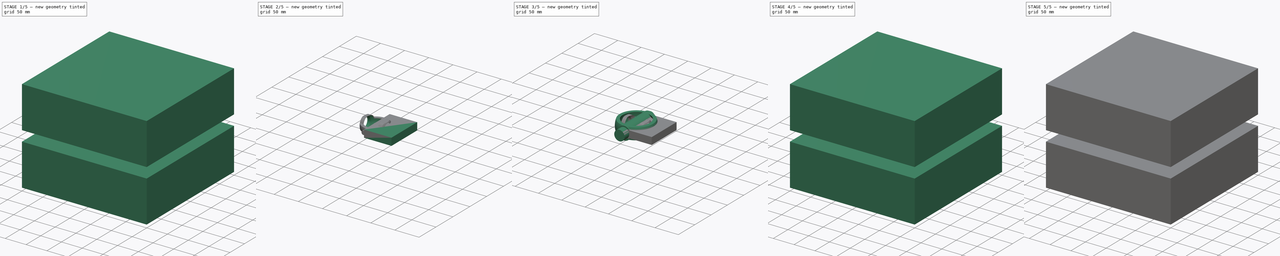
[diagram: build sequence overview — one tinted view per stage of 5, left to right]
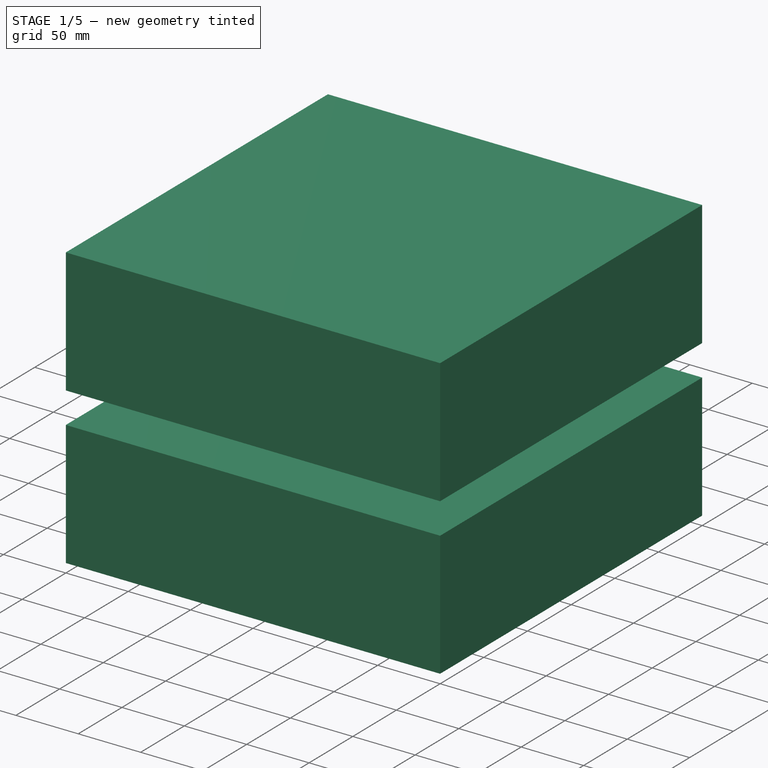
[diagram: stage 1 of 5 — iso view after this stage's code; geometry added in this stage tinted green]
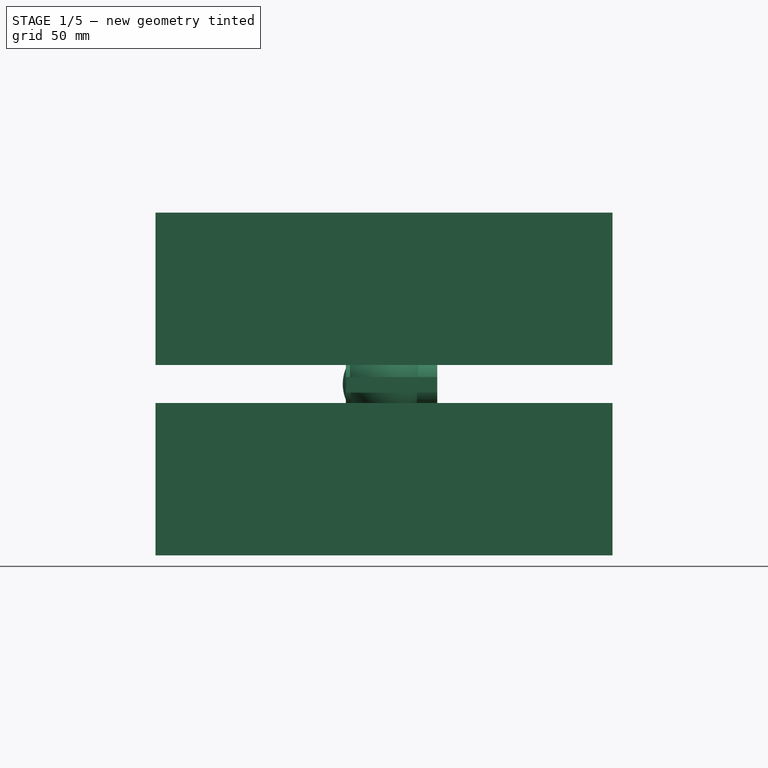
[diagram: stage 1 of 5 — front view after this stage's code; geometry added in this stage tinted green]
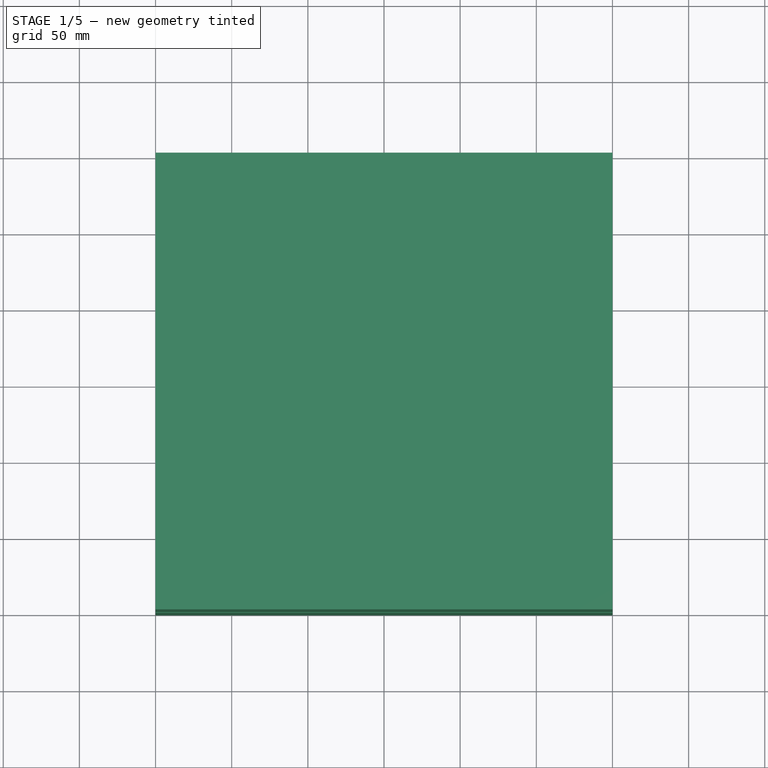
[diagram: stage 1 of 5 — top view after this stage's code; geometry added in this stage tinted green]
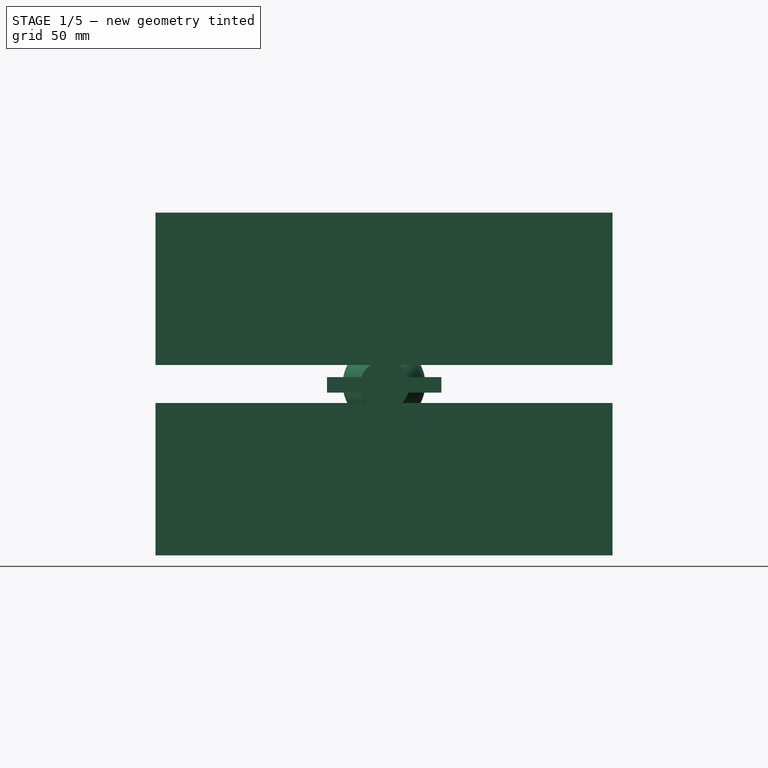
[diagram: stage 1 of 5 — right view after this stage's code; geometry added in this stage tinted green]
FCSTD DOCUMENT  (FreeCAD 0.15R4671 (Git))
Label: gimbalf
License: All rights reserved
LicenseURL: http://en.wikipedia.org/wiki/All_rights_reserved
objects: Part::Cut×13, Part::Cylinder×10, Part::MultiFuse×8, Part::Sphere×6, Part::Box×6, Sketcher::SketchObject×4, PartDesign::Pad×4, PartDesign::Fillet×3, App::MeasureDistance×2, Part::MultiCommon×2, Part::Feature×1
note: 61 computed .brp shape members not serialized (recipe doc carries the construction recipe); baked Part::Feature solids carry a one-line shape summary decoded from their .brp

FEATURE [Part::Sphere] Sphere002  label="Sphère002"
  Angle1 = -90
  Angle2 = 90
  Angle3 = 360
  Placement = pos=(0,0,10.5) rot=(0,0,1;0rad)
  Radius = 27.1
FEATURE [Part::Box] Box002  label="Cube002"
  Height = 100
  Length = 300
  Placement = pos=(-150,-150,-102) rot=(0,0,1;0rad)
  Width = 300
FEATURE [Part::Box] Box003  label="Cube003"
  Height = 100
  Length = 300
  Placement = pos=(-150,-150,23) rot=(0,0,1;0rad)
  Width = 300
FEATURE [Part::MultiFuse] Fusion002
  Shapes = -> [Box002,Box003]
FEATURE [Part::Cylinder] Cylinder007  label="Cylindre006"
  Angle = 360
  Height = 72
  Placement = pos=(0,36,10.5) rot=(1,0,0;1.5708rad)
  Radius = 4
FEATURE [Part::Sphere] Sphere003  label="Sphère003"
  Angle1 = -90
  Angle2 = 90
  Angle3 = 360
  Placement = pos=(0,0,10.5) rot=(0,0,1;0rad)
  Radius = 21.4
FEATURE [Part::Cut] Cut009
  Base = -> Cylinder007
  Tool = -> Sphere003
FEATURE [Sketcher::SketchObject] Sketch002
  Placement = pos=(-25,0,0) rot=(0.57735,0.57735,0.57735;2.0944rad)
  sketch-geometry (4):
    g0: LineSegment StartX=-37.4068 StartY=15.0136 StartZ=0 EndX=37.6613 EndY=15.0136 EndZ=0
    g1: LineSegment StartX=37.6613 StartY=15.0136 StartZ=0 EndX=37.6613 EndY=4.8349 EndZ=0
    g2: LineSegment StartX=37.6613 StartY=4.8349 StartZ=0 EndX=-37.4068 EndY=4.8349 EndZ=0
    g3: LineSegment StartX=-37.4068 StartY=4.8349 StartZ=0 EndX=-37.4068 EndY=15.0136 EndZ=0
  constraints (8):
    c: Coincident(g0,g1)
    c: Coincident(g1,g2)
    c: Coincident(g2,g3)
    c: Coincident(g3,g0)
    c: Horizontal(g0)
    c: Horizontal(g2)
    c: Vertical(g1)
    c: Vertical(g3)
FEATURE [Sketcher::SketchObject] Sketch003
  Placement = pos=(-25,0,0) rot=(0.57735,0.57735,0.57735;2.0944rad)
  sketch-geometry (1):
    g0: Circle CenterX=0.508931 CenterY=9.66979 CenterZ=0 NormalX=0 NormalY=0 NormalZ=1 Radius=16.2302
FEATURE [PartDesign::Pad] Pad002
  Length = 60
  Length2 = 100
  Placement = pos=(-25,0,0) rot=(0.57735,0.57735,0.57735;2.0944rad)
  Sketch = -> Sketch003
  Type = 0
FEATURE [PartDesign::Pad] Pad003
  Length = 60
  Length2 = 100
  Placement = pos=(-25,0,0) rot=(0.57735,0.57735,0.57735;2.0944rad)
  Sketch = -> Sketch002
  Type = 0
FEATURE [Part::MultiFuse] Fusion007
  Shapes = -> [Pad003,Pad002]
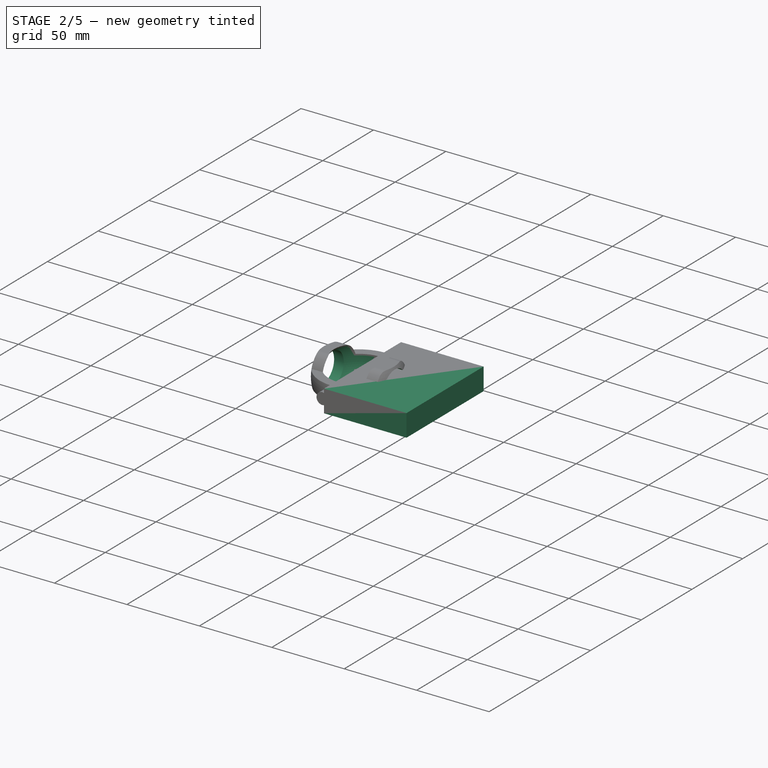
[diagram: stage 2 of 5 — iso view after this stage's code; geometry added in this stage tinted green]
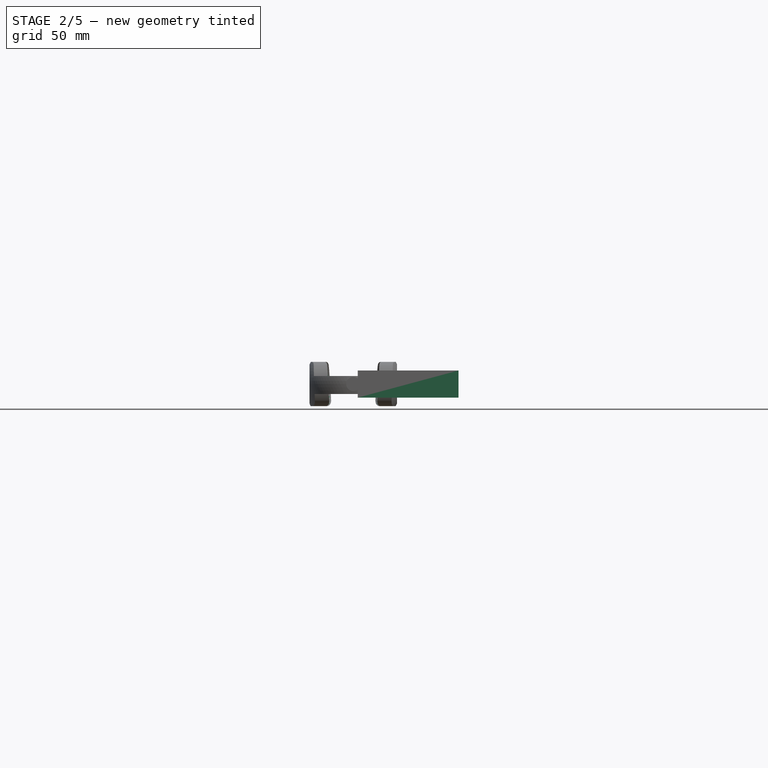
[diagram: stage 2 of 5 — front view after this stage's code; geometry added in this stage tinted green]
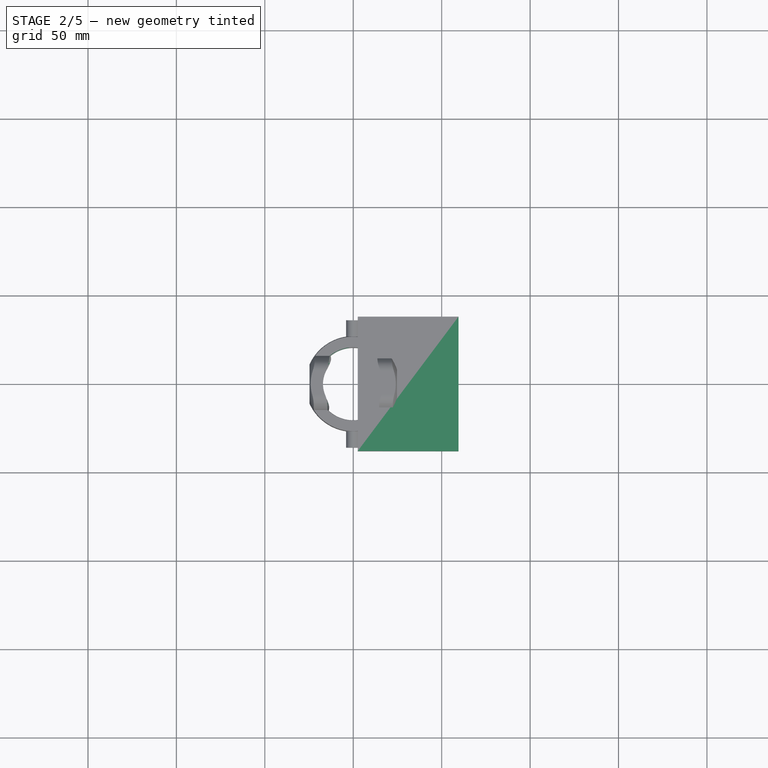
[diagram: stage 2 of 5 — top view after this stage's code; geometry added in this stage tinted green]
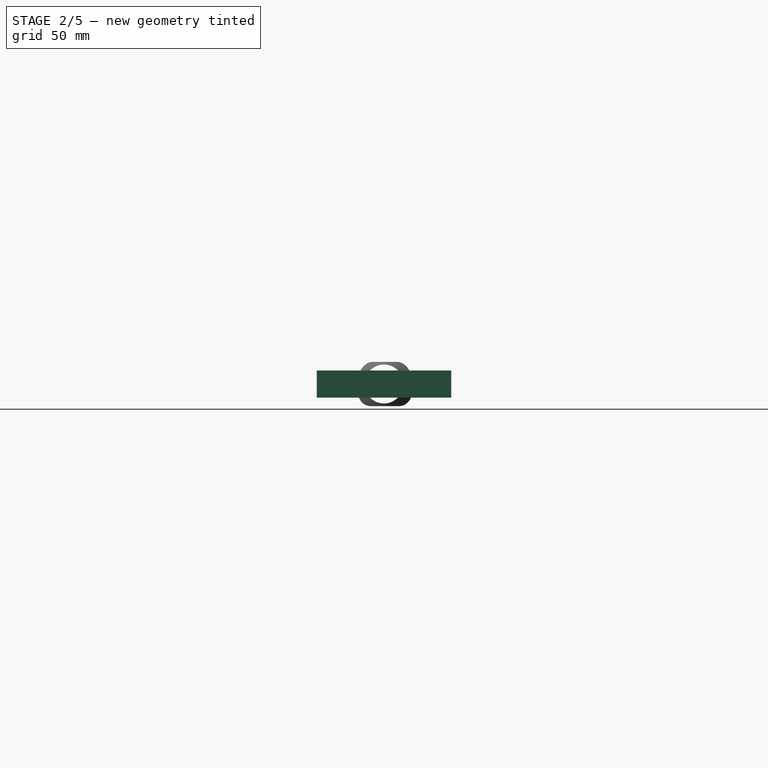
[diagram: stage 2 of 5 — right view after this stage's code; geometry added in this stage tinted green]
FEATURE [Part::Cylinder] Cylinder006  label="Cylindre005"
  Angle = 360
  Height = 68
  Placement = pos=(-32,0,10.5) rot=(0,1,0;1.5708rad)
  Radius = 11
FEATURE [Part::Sphere] Sphere001  label="Sphère001"
  Angle1 = -90
  Angle2 = 90
  Angle3 = 360
  Placement = pos=(0,0,10.5) rot=(0,0,1;0rad)
  Radius = 21.2
FEATURE [Part::Cut] Cut006
  Base = -> Sphere002
  Tool = -> Sphere001
FEATURE [Part::Cut] Cut007
  Base = -> Cut006
  Tool = -> Cylinder006
FEATURE [Part::Cut] Cut008
  Base = -> Cut007
  Tool = -> Fusion002
FEATURE [Part::MultiFuse] Fusion003  label="mediium"
  Shapes = -> [Cut009,Cut008]
FEATURE [PartDesign::Pad] Pad001
  Length = 76
  Length2 = 100
  Placement = pos=(0,38,0) rot=(-1,0,0;4.71239rad)
  Sketch = -> Sketch
  Type = 0
FEATURE [Part::MultiCommon] Common002
  Shapes = -> [Fusion007,Fusion003]
FEATURE [PartDesign::Fillet] Fillet
  Base = -> Common002 [Edge59,Edge62]
  Radius = 7
FEATURE [PartDesign::Fillet] Fillet001
  Base = -> Fillet [Edge52,Edge31]
  Radius = 7
FEATURE [PartDesign::Fillet] Fillet002  label="Medium2"
  Base = -> Fillet001 [Edge70,Edge58,Edge61,Edge73]
  Radius = 7
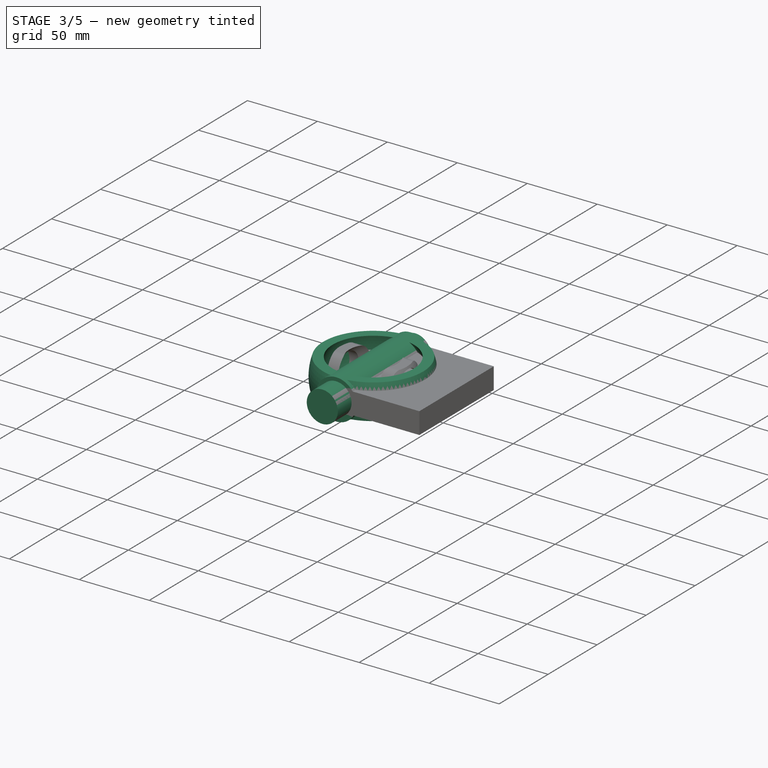
[diagram: stage 3 of 5 — iso view after this stage's code; geometry added in this stage tinted green]
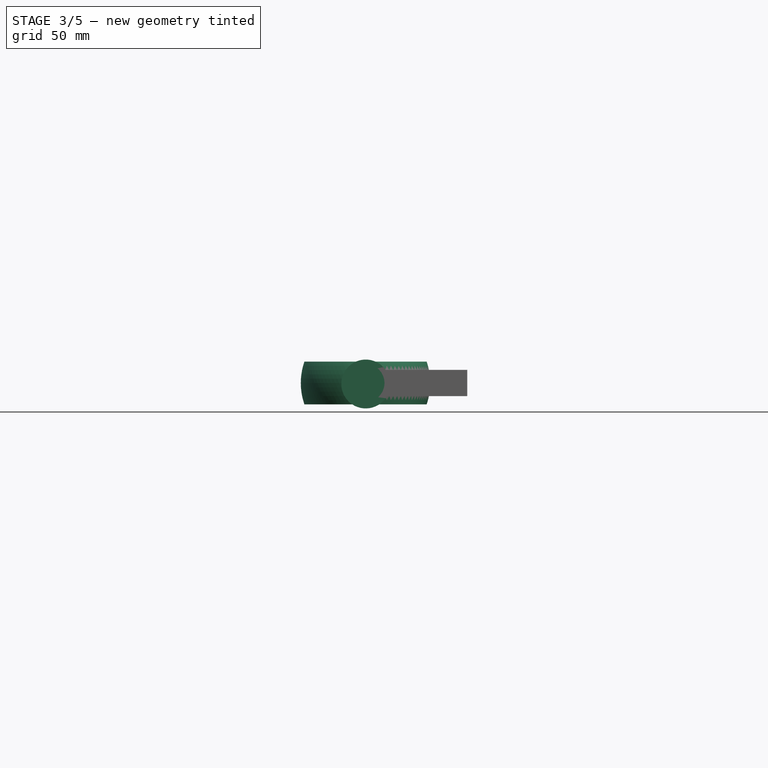
[diagram: stage 3 of 5 — front view after this stage's code; geometry added in this stage tinted green]
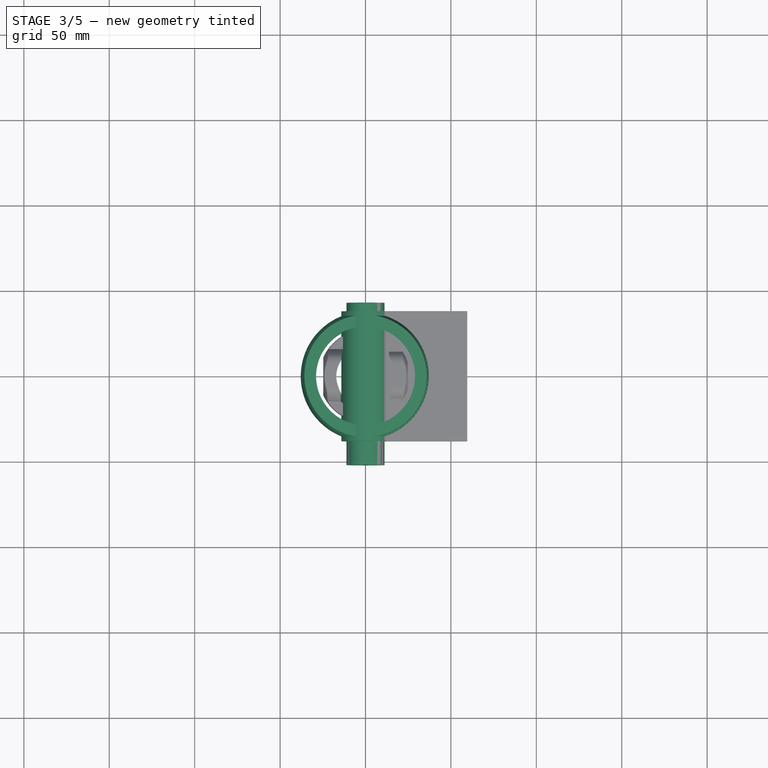
[diagram: stage 3 of 5 — top view after this stage's code; geometry added in this stage tinted green]
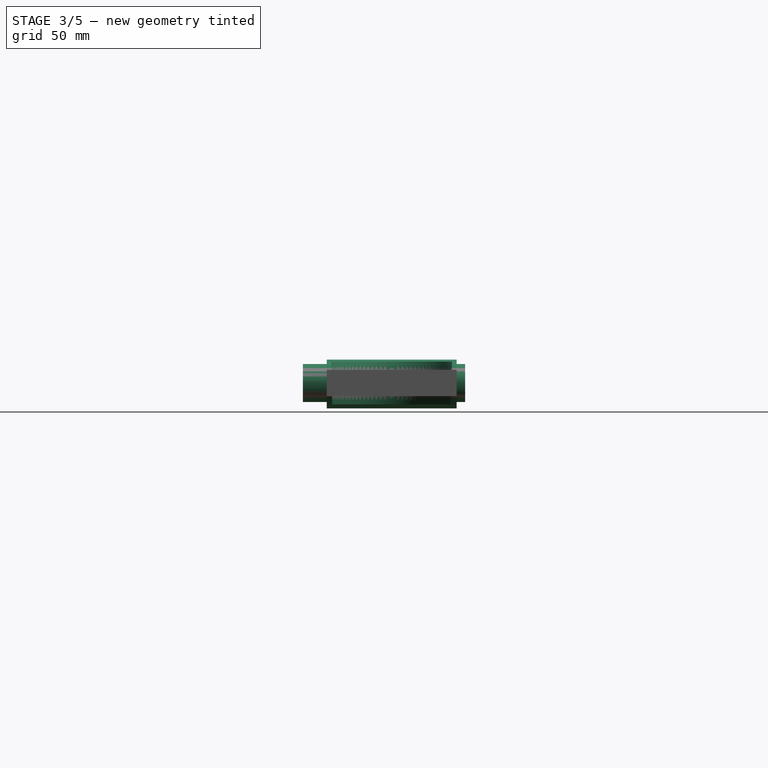
[diagram: stage 3 of 5 — right view after this stage's code; geometry added in this stage tinted green]
FEATURE [Part::Cylinder] Cylinder009  label="Cylindre008"
  Angle = 360
  Height = 95
  Placement = pos=(0,43,10.5) rot=(1,0,0;1.5708rad)
  Radius = 11.1
FEATURE [Part::Sphere] Sphere004  label="Sphère004"
  Angle1 = -90
  Angle2 = 90
  Angle3 = 360
  Placement = pos=(0,0,10.5) rot=(0,0,1;0rad)
  Radius = 31.535
FEATURE [App::MeasureDistance] Distance  label="Distance: 31.535"
  Distance = 31.5351
  P1 = (0,0,5)
  P2 = (11.1,29,10.5)
FEATURE [App::MeasureDistance] Distance001  label="Distance: 49.129"
  Distance = 49.1291
  P1 = (11.1,36,10.5)
  P2 = (0,0,42.035)
FEATURE [Part::Sphere] Sphere005  label="Sphère005"
  Angle1 = -90
  Angle2 = 90
  Angle3 = 360
  Placement = pos=(0,0,10.5) rot=(0,0,1;0rad)
  Radius = 37.9
FEATURE [Part::Cut] Cut010
  Base = -> Sphere005
  Tool = -> Sphere004
FEATURE [Part::Box] Box004  label="Cube004"
  Height = 100
  Length = 300
  Placement = pos=(-150,-150,-102) rot=(0,0,1;0rad)
  Width = 300
FEATURE [Part::Box] Box005  label="Cube005"
  Height = 100
  Length = 300
  Placement = pos=(-150,-150,23) rot=(0,0,1;0rad)
  Width = 300
FEATURE [Part::MultiFuse] Fusion004
  Shapes = -> [Box004,Box005]
FEATURE [Part::Cut] Cut011
  Base = -> Cut010
  Tool = -> Fusion004
FEATURE [Sketcher::SketchObject] Sketch
  Placement = pos=(0,38,0) rot=(-1,0,0;4.71239rad)
  sketch-geometry (4):
    g0: LineSegment StartX=59.5356 StartY=18.1542 StartZ=0 EndX=2.55634 EndY=18.1542 EndZ=0
    g1: LineSegment StartX=2.55634 StartY=18.1542 StartZ=0 EndX=2.55634 EndY=2.79211 EndZ=0
    g2: LineSegment StartX=2.55634 StartY=2.79211 StartZ=0 EndX=59.5356 EndY=2.79211 EndZ=0
    g3: LineSegment StartX=59.5356 StartY=2.79211 StartZ=0 EndX=59.5356 EndY=18.1542 EndZ=0
  constraints (8):
    c: Coincident(g0,g1)
    c: Coincident(g1,g2)
    c: Coincident(g2,g3)
    c: Coincident(g3,g0)
    c: Horizontal(g0)
    c: Horizontal(g2)
    c: Vertical(g1)
    c: Vertical(g3)
FEATURE [Sketcher::SketchObject] Sketch001
  Placement = pos=(0,38,0) rot=(-1,0,0;4.71239rad)
  sketch-geometry (1):
    g0: Circle CenterX=0.139656 CenterY=9.91551 CenterZ=0 NormalX=0 NormalY=0 NormalZ=1 Radius=14.2928
  constraints (1):
    c: Radius(g0) = 14.2928
FEATURE [PartDesign::Pad] Pad
  Length = 76
  Length2 = 100
  Placement = pos=(0,38,0) rot=(-1,0,0;4.71239rad)
  Sketch = -> Sketch001
  Type = 0
FEATURE [Part::MultiFuse] Fusion006
  Shapes = -> [Pad,Pad001]
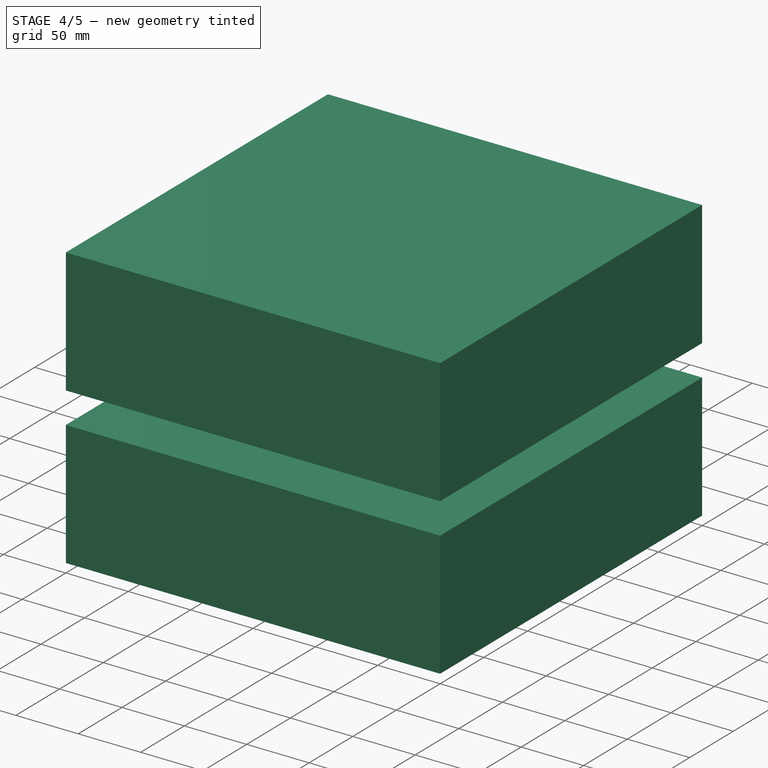
[diagram: stage 4 of 5 — iso view after this stage's code; geometry added in this stage tinted green]
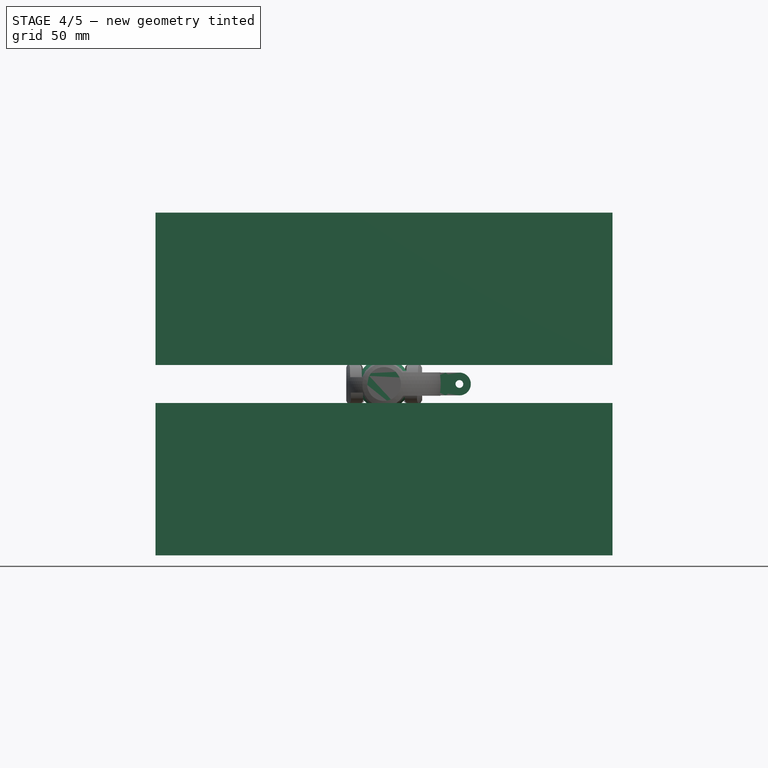
[diagram: stage 4 of 5 — front view after this stage's code; geometry added in this stage tinted green]
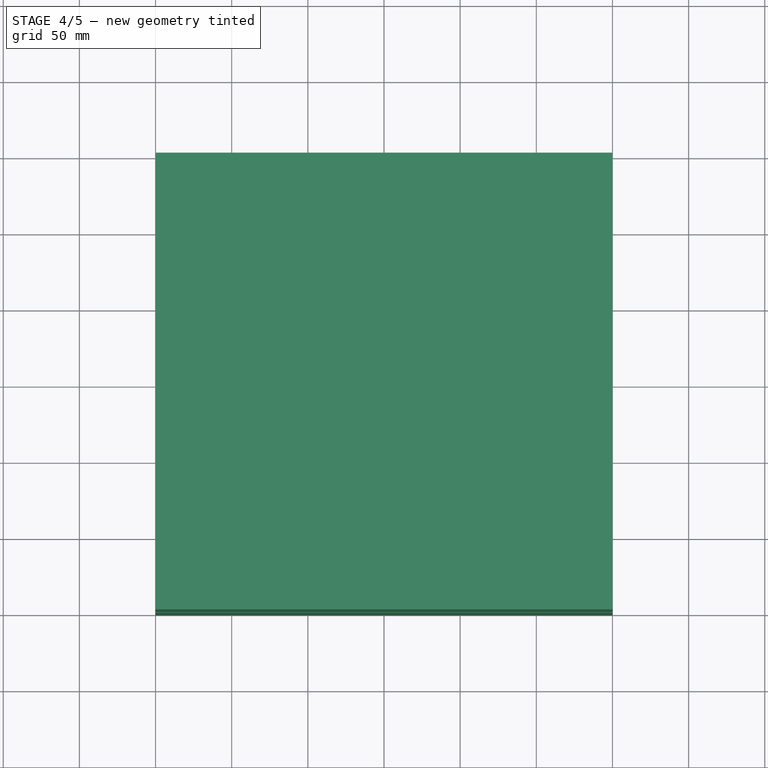
[diagram: stage 4 of 5 — top view after this stage's code; geometry added in this stage tinted green]
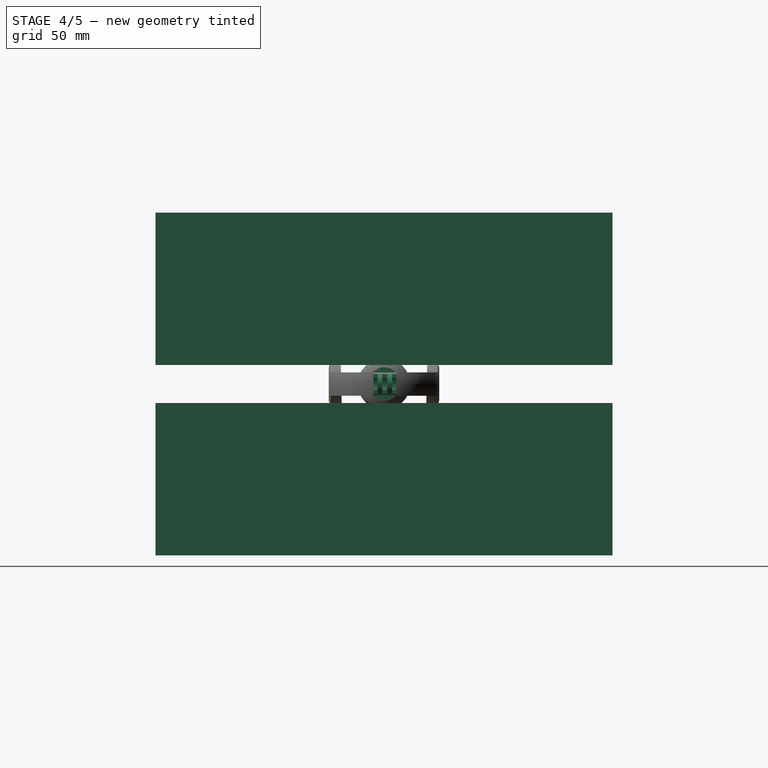
[diagram: stage 4 of 5 — right view after this stage's code; geometry added in this stage tinted green]
FEATURE [Part::Cylinder] Cylinder  label="Cylindre"
  Angle = 360
  Height = 21
  Radius = 12.5
FEATURE [Part::Cylinder] Cylinder004  label="Axe rotation"
  Angle = 360
  Height = 48
  Placement = pos=(-23,0,10.5) rot=(0,1,0;1.5708rad)
  Radius = 3.95
FEATURE [Part::Sphere] Sphere  label="Sphère"
  Angle1 = -90
  Angle2 = 90
  Angle3 = 360
  Placement = pos=(0,0,10.5) rot=(0,0,1;0rad)
  Radius = 17
FEATURE [Part::Box] Box  label="Cube"
  Height = 100
  Length = 300
  Placement = pos=(-150,-150,-102) rot=(0,0,1;0rad)
  Width = 300
FEATURE [Part::Box] Box001  label="Cube001"
  Height = 100
  Length = 300
  Placement = pos=(-150,-150,23) rot=(0,0,1;0rad)
  Width = 300
FEATURE [Part::MultiFuse] Fusion001
  Shapes = -> [Box,Box001]
FEATURE [Part::Cylinder] Cylinder005  label="Cylindre004"
  Angle = 360
  Height = 7
  Placement = pos=(18,0,10.5) rot=(0,1,0;1.5708rad)
  Radius = 11
FEATURE [Part::Cylinder] Cylinder008  label="Cylindre007"
  Angle = 360
  Height = 7
  Placement = pos=(0,-29,10.5) rot=(1,0,0;1.5708rad)
  Radius = 11.1
FEATURE [Part::Cut] Cut012
  Base = -> Cut011
  Tool = -> Cylinder009
FEATURE [Part::Feature] Common  label="attache GOPRO"
  Placement = pos=(32,-7,10.5) rot=(0,-1,0;1.5708rad)
  shape: bbox 21.99 x 15 x 15 mm, 390 faces (baked)
FEATURE [Part::MultiFuse] Fusion005  label="Grand"
  Shapes = -> [Common,Cut012]
FEATURE [Part::MultiCommon] Common001  label="grad evider"
  Shapes = -> [Fusion005,Fusion006]
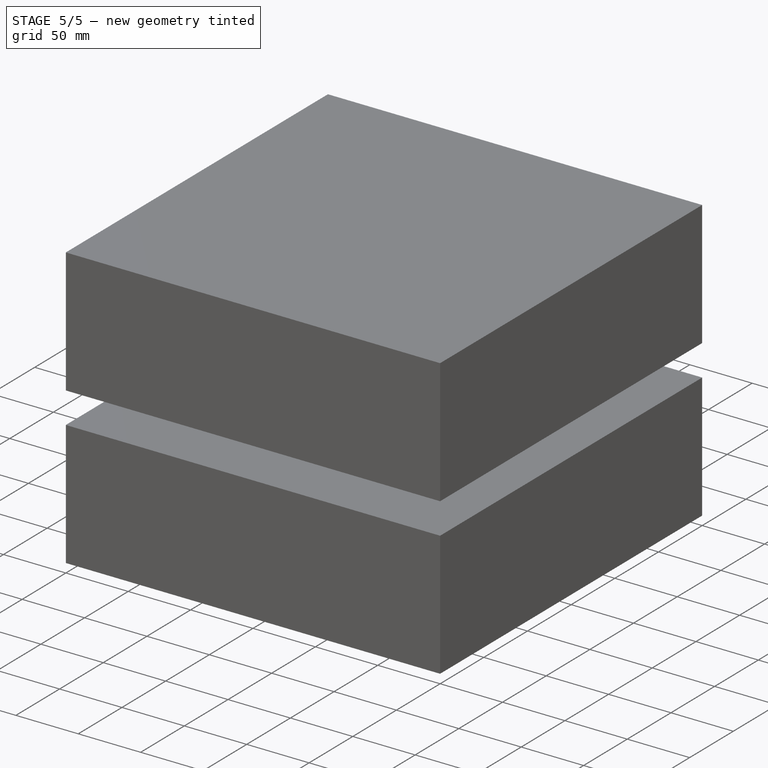
[diagram: stage 5 of 5 — iso view after this stage's code; geometry added in this stage tinted green]
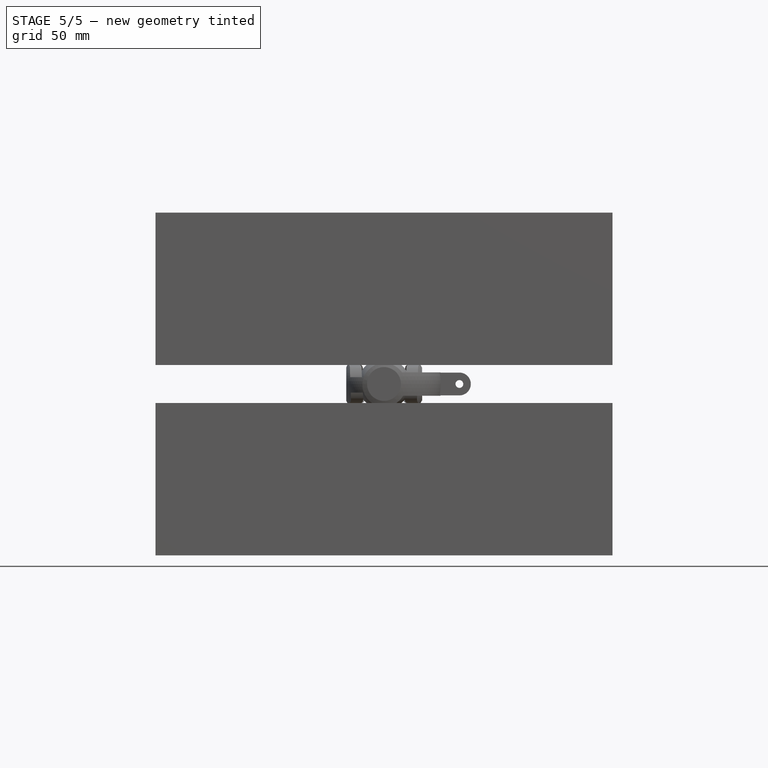
[diagram: stage 5 of 5 — front view after this stage's code; geometry added in this stage tinted green]
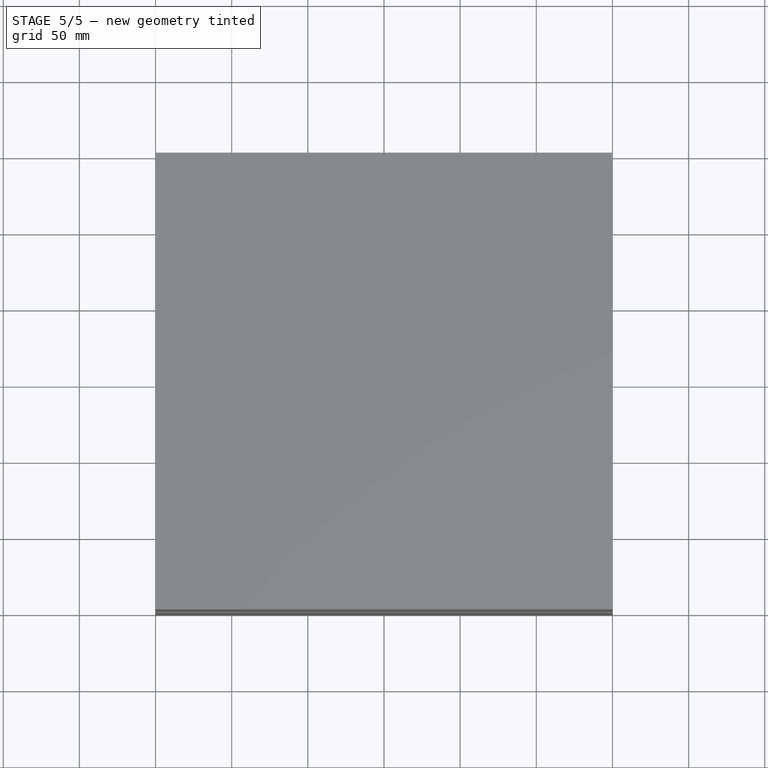
[diagram: stage 5 of 5 — top view after this stage's code; geometry added in this stage tinted green]
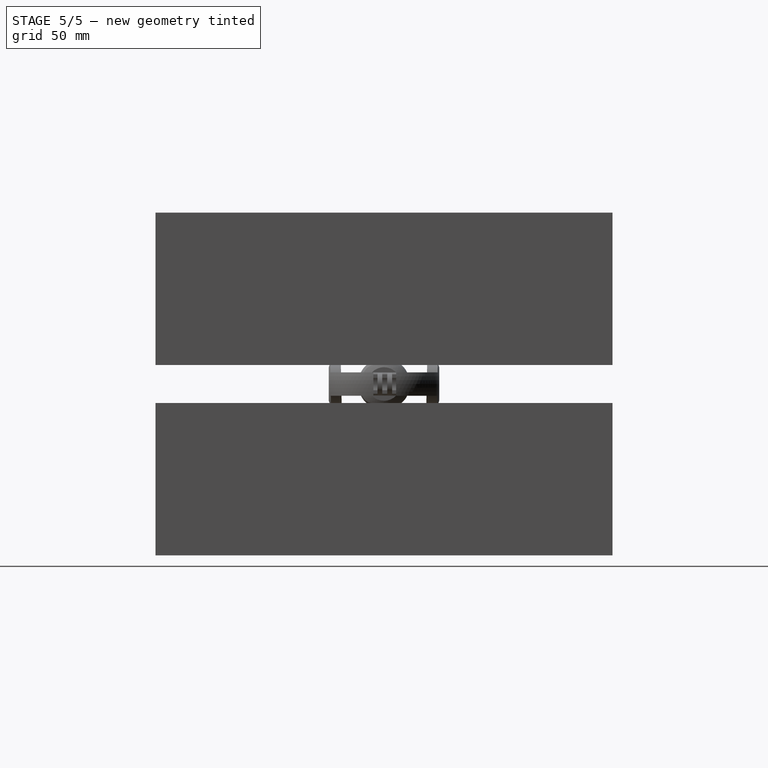
[diagram: stage 5 of 5 — right view after this stage's code; geometry added in this stage tinted green]
FEATURE [Part::Cylinder] Cylinder001  label="Cylindre001"
  Angle = 360
  Height = 50
  Placement = pos=(0,0,-11) rot=(0,0,1;0rad)
  Radius = 7.5
FEATURE [Part::Cut] Cut
  Base = -> Cylinder
  Tool = -> Cylinder001
FEATURE [Part::Cylinder] Cylinder002  label="Cylindre002"
  Angle = 360
  Height = 7.1
  Placement = pos=(0,0,-0.0001) rot=(0,0,1;0rad)
  Radius = 11
FEATURE [Part::Cut] Cut001
  Base = -> Cut
  Tool = -> Cylinder002
FEATURE [Part::Cylinder] Cylinder003  label="Cylindre003"
  Angle = 360
  Height = 7.1
  Placement = pos=(0,0,13.91) rot=(0,0,1;0rad)
  Radius = 11
FEATURE [Part::Cut] Cut002
  Base = -> Cut001
  Tool = -> Cylinder003
FEATURE [Part::MultiFuse] Fusion
  Shapes = -> [Cylinder,Cylinder004]
FEATURE [Part::Cut] Cut003
  Base = -> Fusion
  Tool = -> Cylinder002
FEATURE [Part::Cut] Cut004
  Base = -> Cut003
  Tool = -> Cylinder003
FEATURE [Part::Cut] Cut005  label="centrale"
  Base = -> Cut004
  Tool = -> Cylinder001
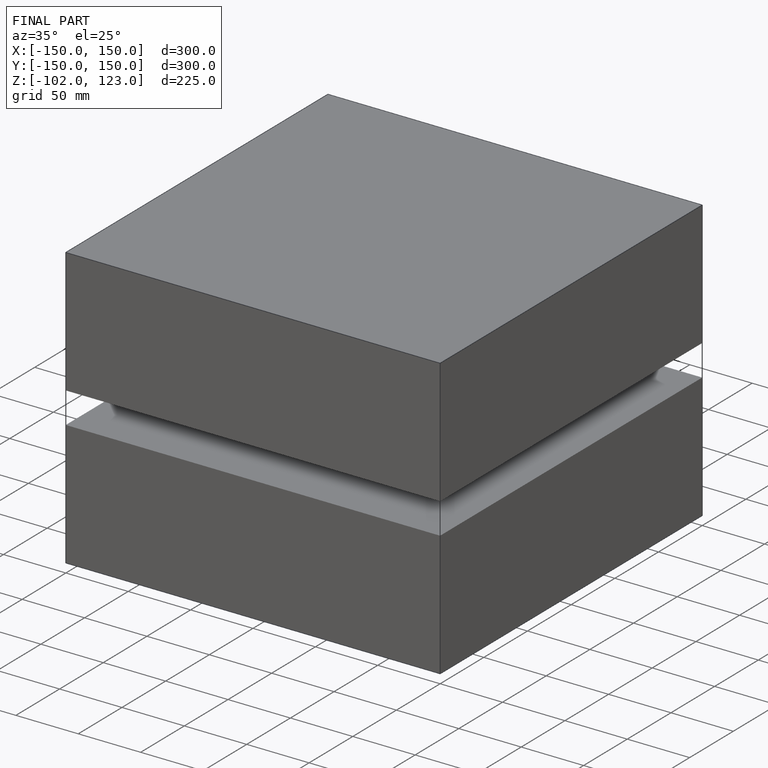
[diagram: finished part — iso view with bounding-box wireframe]
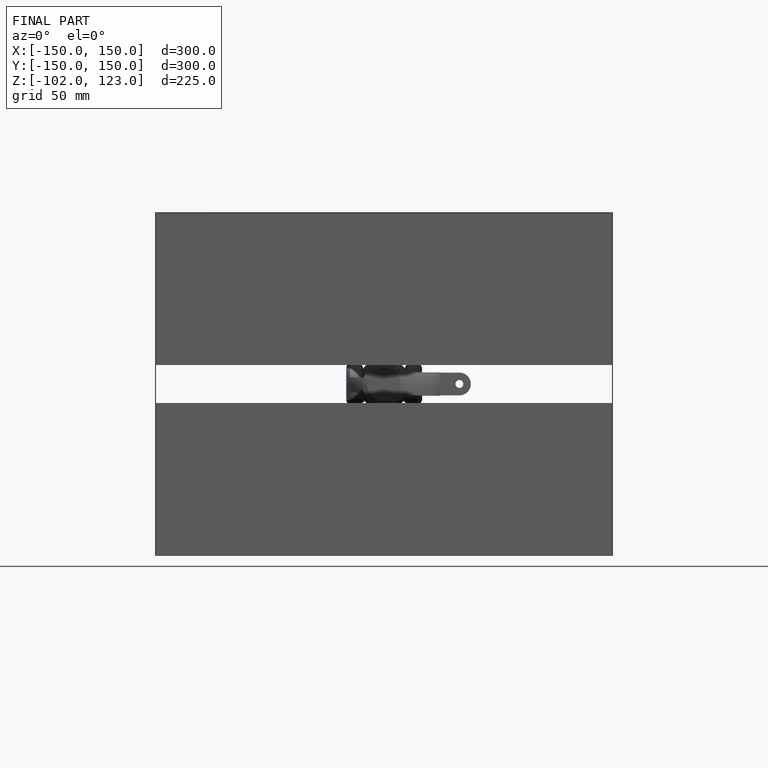
[diagram: finished part — front view with bounding-box wireframe]
